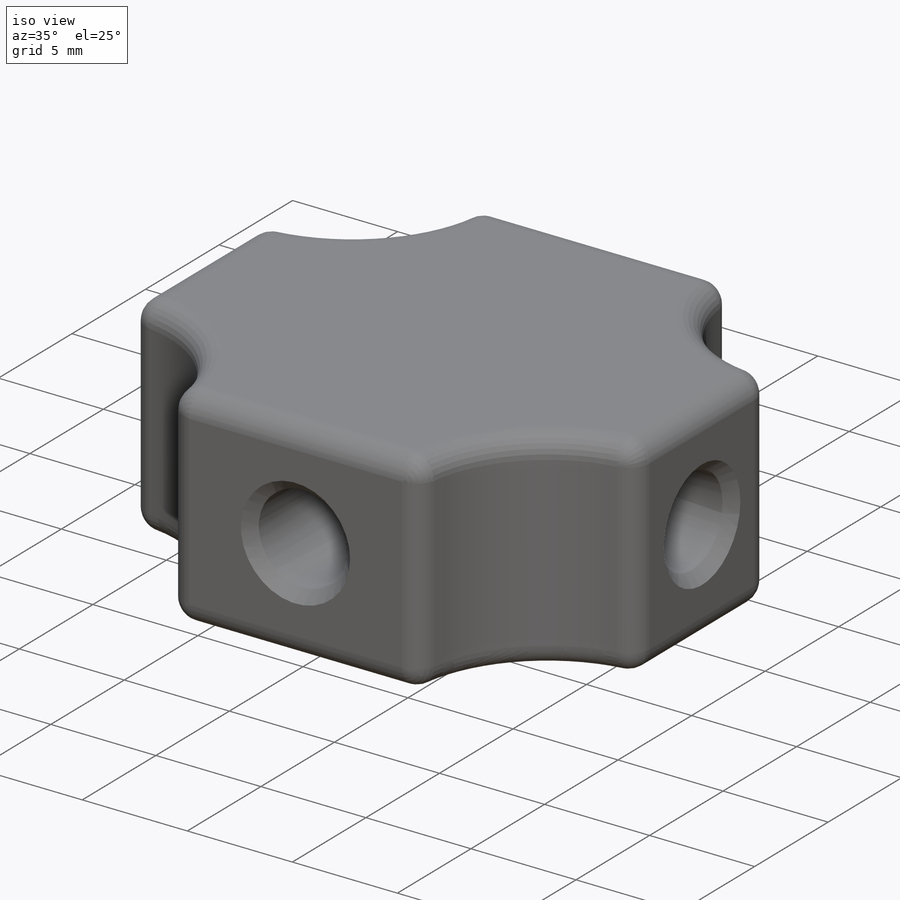
[diagram: iso view]
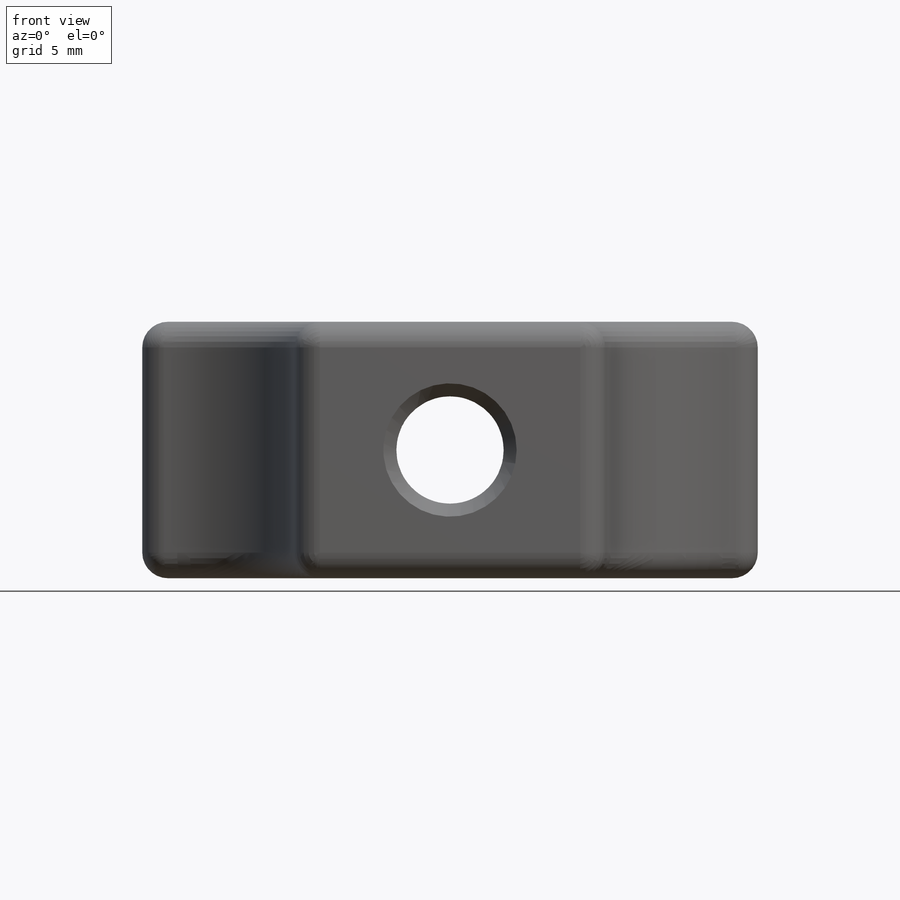
[diagram: front view]
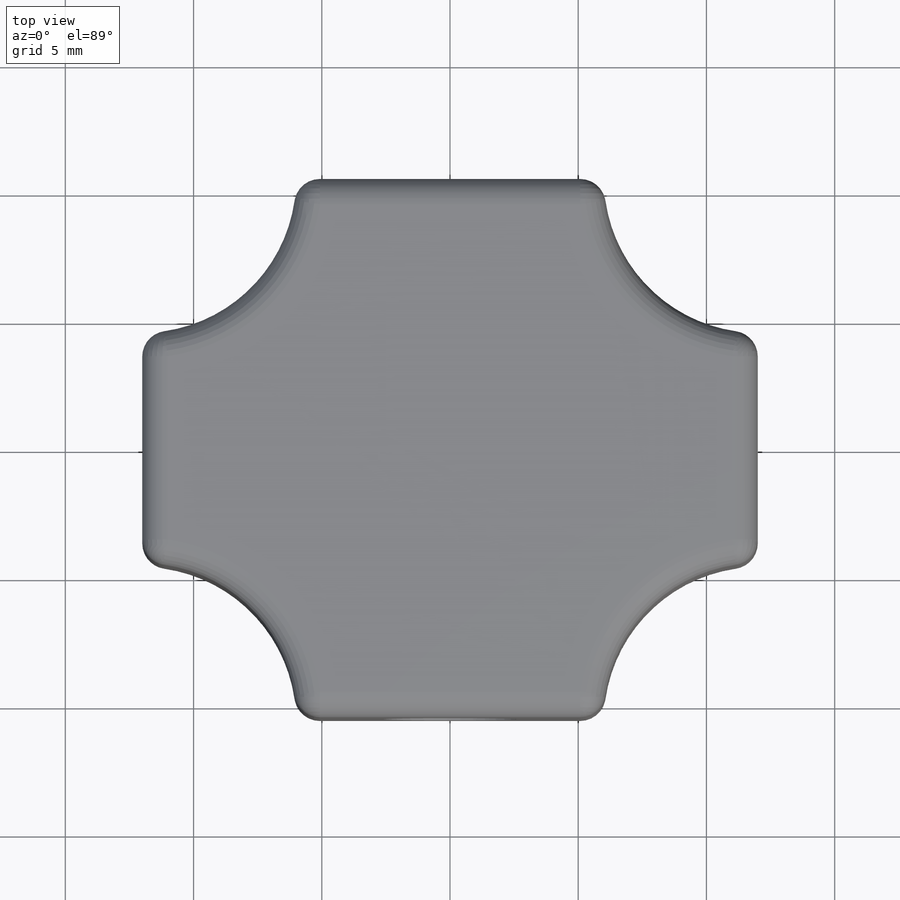
[diagram: top view]
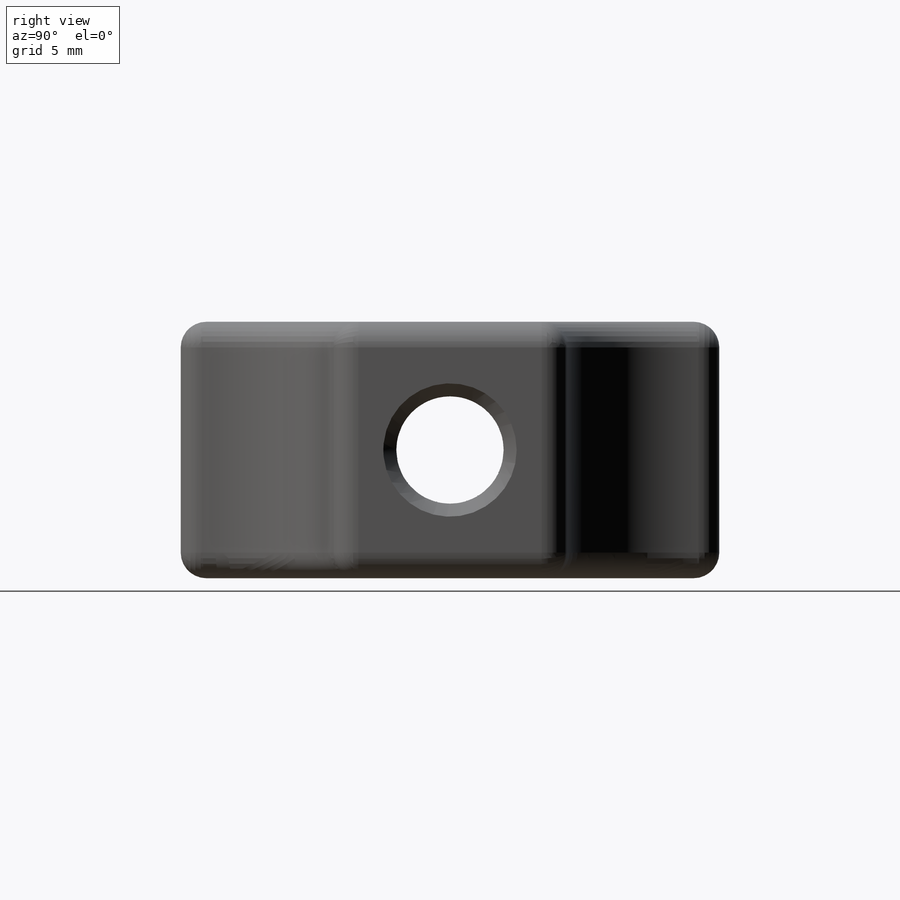
[diagram: right view]
SOLIDWORKS PART (.sldprt)
format: sldprt  version: not decoded by parser v0  size: 408,064 bytes
history: native  units: mm
features: sketch x4, plane x3, cut_extrude x3, fillet x2, material x1, extrude x1, chamfer x1 (+9 scaffold rows collapsed)
feature tree (24):
  scaffold x9  (default folders/planes/origin — collapsed)
  material  "Material <nicht festgelegt>"
  plane  "Vorne"
  plane  "Oben"
  plane  "Rechts"
  sketch  "Skizze1"  dims[D1=21.0mm D2=24.0mm D3=12.0mm D4=10.5mm]
  extrude  "Aufsatz-Linear austragen1"  Depth=10mm
  sketch  "Skizze2"  dims[D1=4.2mm D2=5.0mm D3=11.0mm]
  cut_extrude  "Schnitt-Linear austragen1"  Depth=20mm
  sketch  "Skizze3"  dims[D1=4.2mm D2=5.0mm]
  cut_extrude  "Schnitt-Linear austragen2"  Depth=20mm
  sketch  "Skizze4"  dims[D1=12.0mm]
  cut_extrude  "Schnitt-Linear austragen3"  Depth=10mm
  fillet  "Verrundung1"  Radius=1mm
  fillet  "Verrundung2"  Radius=1mm
  chamfer  "Fase1"  Distance=0.5mm Angle=45deg
decode coverage: 11 of 11 modeling features carry decoded parameters
note: suppression state not decoded; provenance and decode notes live in map.json
